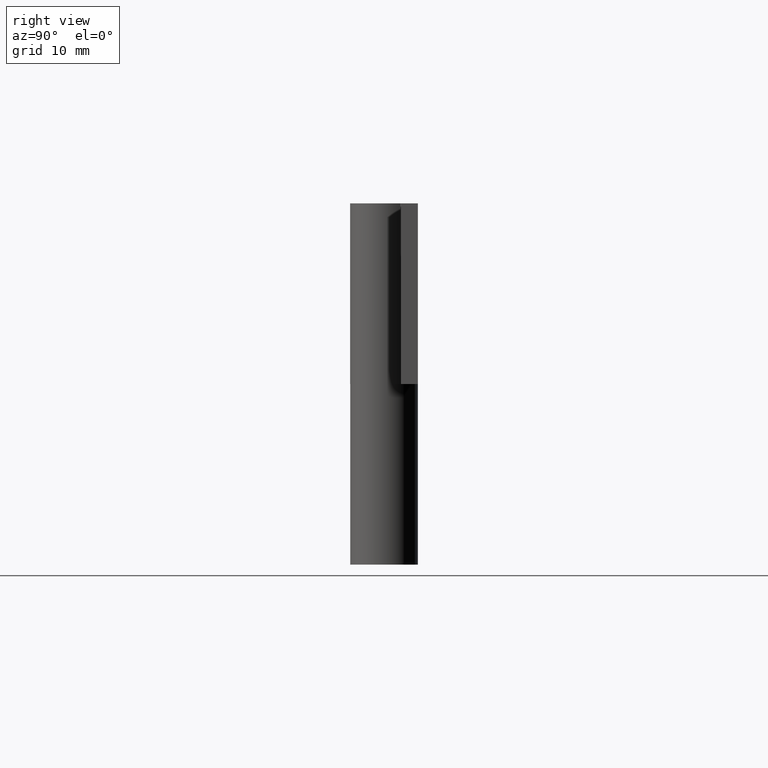
[diagram: clean part render]
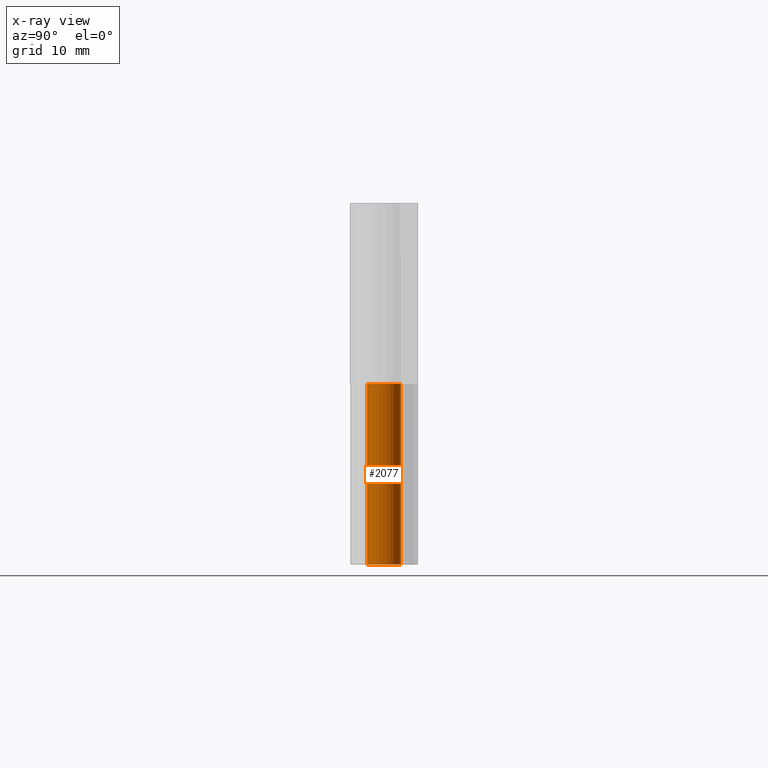
[diagram: x-ray — body ghosted, one internal face saturated and labeled with its STEP entity id]
A machine part, right view, then the same camera in x-ray: the body is ghosted and one INTERNAL B-rep face — a face not visible from any outside direction — is saturated and labeled: STEP entity #2077.
In plain terms, the highlighted face is a freeform B-spline surface patch.
Its self-contained STEP definition (entity closure, byte-faithful):
#1823=CARTESIAN_POINT('',(-2.755364E-016,1.500000000000000,16.0));
#1824=VERTEX_POINT('',#1823);
#1830=CARTESIAN_POINT('',(-1.313154598666890,0.725000000000000,16.0));
#1831=VERTEX_POINT('',#1830);
#1832=CARTESIAN_POINT('',(0.0,1.500000000000000,16.0));
#1833=CARTESIAN_POINT('',(1.145299021212404,1.500000000000001,16.000000000000004));
#1834=CARTESIAN_POINT('',(1.447014444021651,0.395157182387862,16.0));
#1835=CARTESIAN_POINT('',(1.748729866830897,-0.709685635224275,16.000000000000004));
#1836=CARTESIAN_POINT('',(0.762397534098847,-1.291801068276381,16.0));
#1837=CARTESIAN_POINT('',(-0.223934798633204,-1.873916501328487,16.000000000000004));
#1838=CARTESIAN_POINT('',(-1.045325295443044,-1.075776476182164,16.0));
#1839=CARTESIAN_POINT('',(-1.866715792252885,-0.277636451035840,16.000000000000004));
#1840=CARTESIAN_POINT('',(-1.313154598666891,0.724999999999998,16.0));
#1848=(BOUNDED_CURVE()B_SPLINE_CURVE(2,(#1832,#1833,#1834,#1835,#1836,#1837,#1838,#1839,#1840),.UNSPECIFIED.,.F.,.U.)B_SPLINE_CURVE_WITH_KNOTS((3,2,2,2,3),(0.0,0.250000000000000,0.500000000000000,0.750000000000000,1.0),.UNSPECIFIED.)CURVE()GEOMETRIC_REPRESENTATION_ITEM()RATIONAL_B_SPLINE_CURVE((1.0,0.794807562115481,1.0,0.794807562115481,1.0,0.794807562115481,1.0,0.794807562115481,1.0))REPRESENTATION_ITEM(''));
#1849=EDGE_CURVE('',#1824,#1831,#1848,.T.);
#1901=CARTESIAN_POINT('',(-2.755364E-016,1.500000000000000,0.0));
#1902=VERTEX_POINT('',#1901);
#1943=CARTESIAN_POINT('',(-1.313154598666890,0.725000000000000,0.0));
#1944=VERTEX_POINT('',#1943);
#1950=CARTESIAN_POINT('',(0.0,1.500000000000000,0.0));
#1951=CARTESIAN_POINT('',(1.145299021212404,1.500000000000001,0.0));
#1952=CARTESIAN_POINT('',(1.447014444021651,0.395157182387862,0.0));
#1953=CARTESIAN_POINT('',(1.748729866830897,-0.709685635224275,0.0));
#1954=CARTESIAN_POINT('',(0.762397534098847,-1.291801068276381,0.0));
#1955=CARTESIAN_POINT('',(-0.223934798633204,-1.873916501328487,0.0));
#1956=CARTESIAN_POINT('',(-1.045325295443044,-1.075776476182164,0.0));
#1957=CARTESIAN_POINT('',(-1.866715792252885,-0.277636451035840,0.0));
#1958=CARTESIAN_POINT('',(-1.313154598666891,0.724999999999998,0.0));
#1966=(BOUNDED_CURVE()B_SPLINE_CURVE(2,(#1950,#1951,#1952,#1953,#1954,#1955,#1956,#1957,#1958),.UNSPECIFIED.,.F.,.U.)B_SPLINE_CURVE_WITH_KNOTS((3,2,2,2,3),(0.0,0.250000000000000,0.500000000000000,0.750000000000000,1.0),.UNSPECIFIED.)CURVE()GEOMETRIC_REPRESENTATION_ITEM()RATIONAL_B_SPLINE_CURVE((1.0,0.794807562115481,1.0,0.794807562115481,1.0,0.794807562115481,1.0,0.794807562115481,1.0))REPRESENTATION_ITEM(''));
#1967=EDGE_CURVE('',#1902,#1944,#1966,.T.);
#2035=CARTESIAN_POINT('',(-1.313154598666890,0.725000000000000,0.0));
#2036=CARTESIAN_POINT('',(-1.313154598666890,0.725000000000000,16.0));
#2037=QUASI_UNIFORM_CURVE('',1,(#2035,#2036),.UNSPECIFIED.,.F.,.U.);
#2038=EDGE_CURVE('',#1944,#1831,#2037,.T.);
#2045=CARTESIAN_POINT('',(-0.039265422461812,1.499485987463336,-0.400000000000000));
#2046=CARTESIAN_POINT('',(-0.039265422461812,1.499485987463336,16.410000000000000));
#2047=CARTESIAN_POINT('',(1.779756536609292,1.547118753816204,-0.400000000000001));
#2048=CARTESIAN_POINT('',(1.779756536609292,1.547118753816204,16.410000000000004));
#2049=CARTESIAN_POINT('',(1.479428402305847,-0.247571408791013,-0.400000000000000));
#2050=CARTESIAN_POINT('',(1.479428402305847,-0.247571408791013,16.410000000000000));
#2051=CARTESIAN_POINT('',(1.179100268002403,-2.042261571398230,-0.400000000000001));
#2052=CARTESIAN_POINT('',(1.179100268002403,-2.042261571398230,16.410000000000004));
#2053=CARTESIAN_POINT('',(-0.525311071889197,-1.405008283872598,-0.400000000000000));
#2054=CARTESIAN_POINT('',(-0.525311071889197,-1.405008283872598,16.410000000000000));
#2055=CARTESIAN_POINT('',(-2.229722411780797,-0.767754996346966,-0.400000000000001));
#2056=CARTESIAN_POINT('',(-2.229722411780797,-0.767754996346966,16.410000000000004));
#2057=CARTESIAN_POINT('',(-1.278960246531141,0.783747847073919,-0.400000000000000));
#2058=CARTESIAN_POINT('',(-1.278960246531141,0.783747847073919,16.410000000000000));
#2066=(BOUNDED_SURFACE()B_SPLINE_SURFACE(1,2,((#2045,#2047,#2049,#2051,#2053,#2055,#2057),(#2046,#2048,#2050,#2052,#2054,#2056,#2058)),.UNSPECIFIED.,.F.,.F.,.U.)B_SPLINE_SURFACE_WITH_KNOTS((2,2),(3,2,2,3),(0.0,16.809999999999999),(0.0,2.829783712627325,5.659567425254650,8.489351137881975),.UNSPECIFIED.)GEOMETRIC_REPRESENTATION_ITEM()RATIONAL_B_SPLINE_SURFACE(((1.0,0.636078220277764,1.0,0.636078220277764,1.0,0.636078220277764,1.0),(1.0,0.636078220277764,1.0,0.636078220277764,1.0,0.636078220277764,1.0)))REPRESENTATION_ITEM('')SURFACE());
#2067=ORIENTED_EDGE('',*,*,#1849,.F.);
#2068=CARTESIAN_POINT('',(-2.755364E-016,1.500000000000000,0.0));
#2069=CARTESIAN_POINT('',(-2.755364E-016,1.500000000000000,16.0));
#2070=QUASI_UNIFORM_CURVE('',1,(#2068,#2069),.UNSPECIFIED.,.F.,.U.);
#2071=EDGE_CURVE('',#1902,#1824,#2070,.T.);
#2072=ORIENTED_EDGE('',*,*,#2071,.F.);
#2073=ORIENTED_EDGE('',*,*,#1967,.T.);
#2074=ORIENTED_EDGE('',*,*,#2038,.T.);
#2075=EDGE_LOOP('',(#2067,#2072,#2073,#2074));
#2076=FACE_OUTER_BOUND('',#2075,.T.);
#2077=ADVANCED_FACE('',(#2076),#2066,.F.);